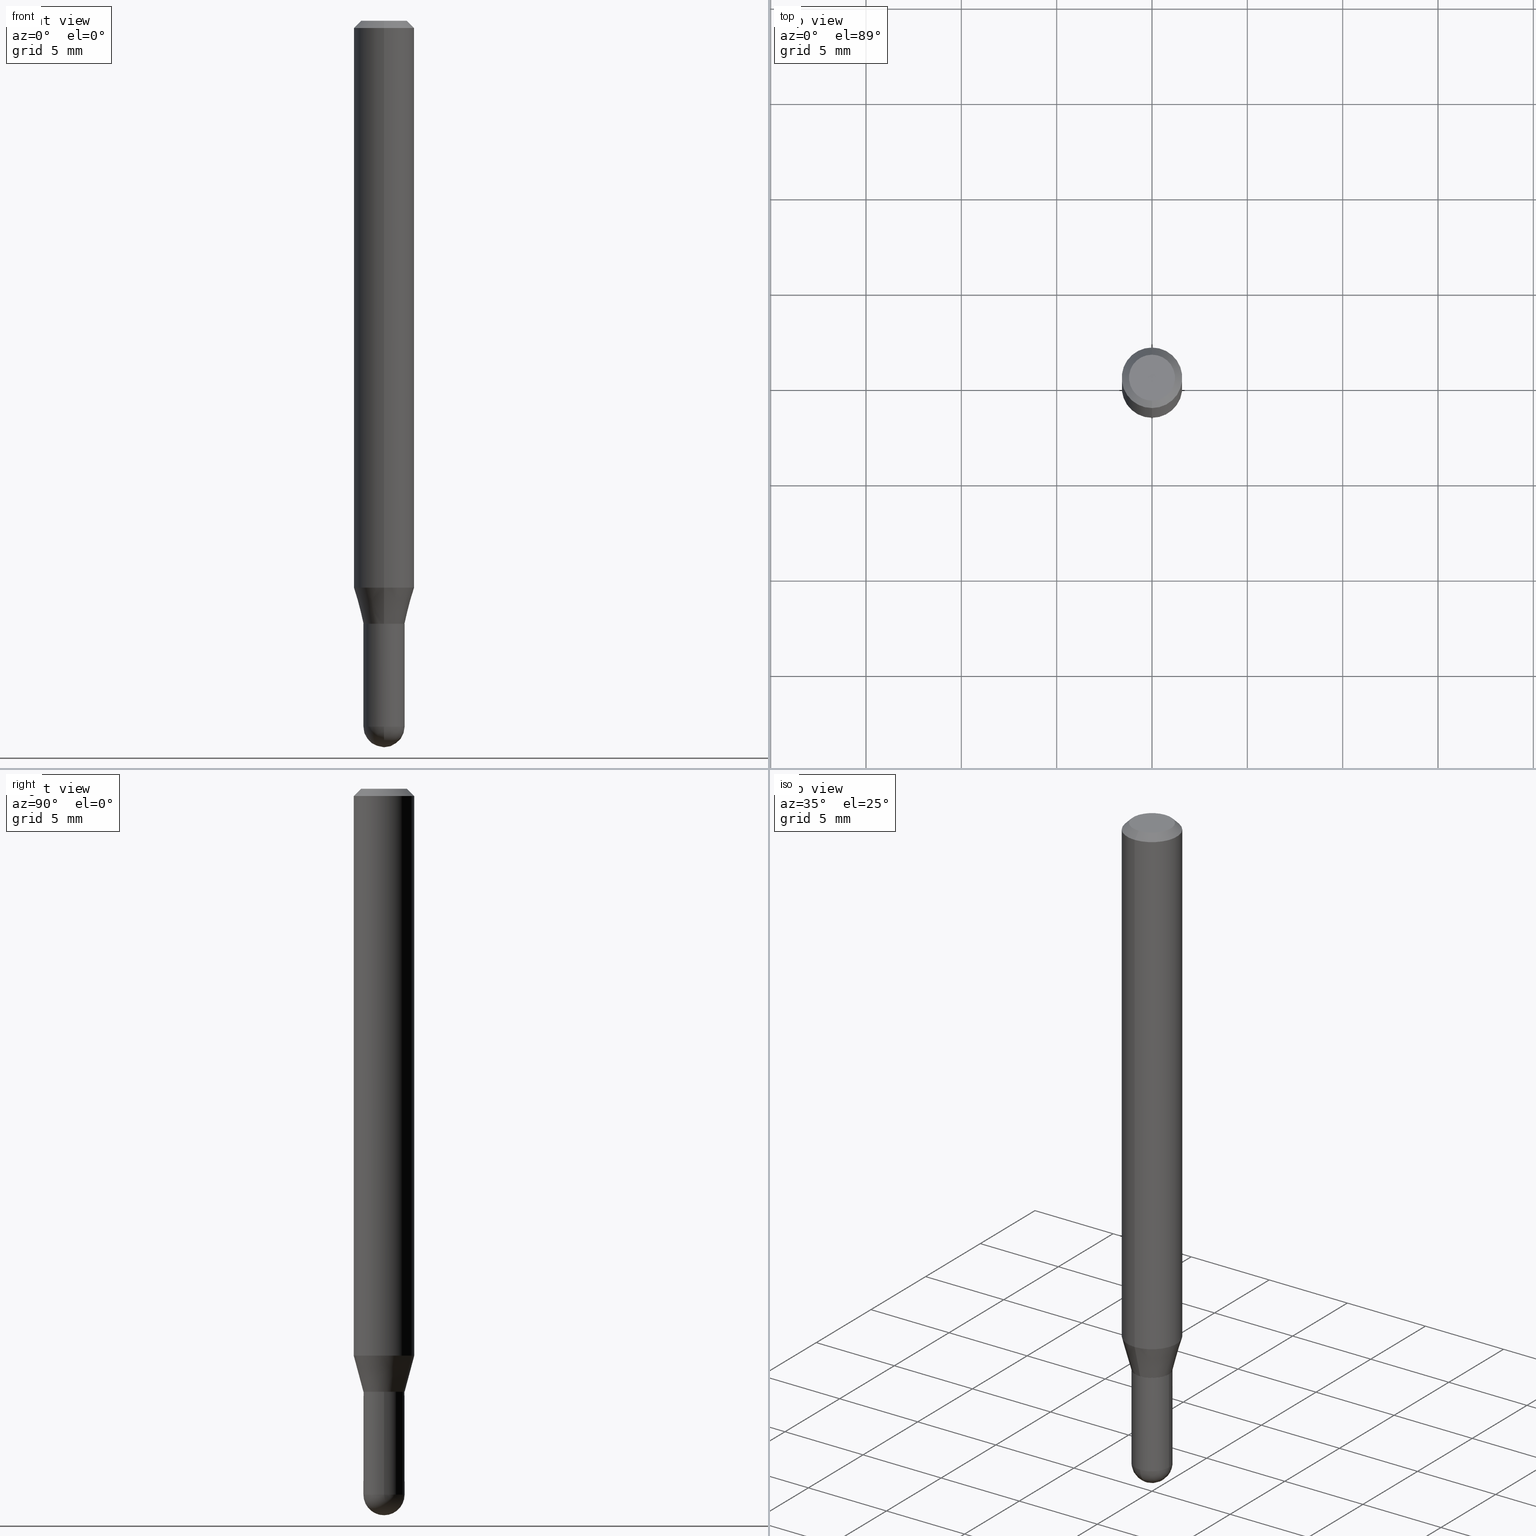
[diagram: canonical four-view strip — front | top / right | iso, engineering-drawing reading convention]
A machine part, canonical four-view strip (front | top / right | iso — engineering-drawing reading convention). The complete STEP part file that produces these views, byte-faithful:
ISO-10303-21;
HEADER;
FILE_DESCRIPTION (( 'STEP AP203' ),
    '1' );
FILE_NAME ('04445.STEP',
    '2024-03-08T19:35:54',
    ( '' ),
    ( '' ),
    'SwSTEP 2.0',
    'SolidWorks 2023',
    '' );
FILE_SCHEMA (( 'CONFIG_CONTROL_DESIGN' ));
ENDSEC;

DATA;
#1 = EDGE_CURVE ( 'NONE', #182, #264, #309, .T. ) ;
#2 = DIRECTION ( 'NONE',  ( 6.982962677686265922E-15, 1.000000000000000000, -3.483106191921935554E-15 ) ) ;
#3 = ORIENTED_EDGE ( 'NONE', *, *, #354, .F. ) ;
#4 = ORIENTED_EDGE ( 'NONE', *, *, #226, .F. ) ;
#5 = CARTESIAN_POINT ( 'NONE',  ( -0.04250000000000000999, 3.019806626980426500E-16, -2.090547413358335560E-30 ) ) ;
#6 = AXIS2_PLACEMENT_3D ( 'NONE', #481, #129, #242 ) ;
#7 = LOCAL_TIME ( 14, 35, 54.00000000000000000, #35 ) ;
#8 = EDGE_CURVE ( 'NONE', #411, #455, #431, .T. ) ;
#9 = DIRECTION ( 'NONE',  ( -6.982962677686266711E-15, -1.000000000000000000, 0.000000000000000000 ) ) ;
#10 = CARTESIAN_POINT ( 'NONE',  ( 3.044647854309381895E-29, -4.346838143677203113E-15, -1.245000000000000551 ) ) ;
#11 = DIRECTION ( 'NONE',  ( -6.982962677686265922E-15, -1.000000000000000000, 6.504399984914913214E-15 ) ) ;
#12 = AXIS2_PLACEMENT_3D ( 'NONE', #462, #417, #223 ) ;
#13 = DIRECTION ( 'NONE',  ( -1.807323732225377471E-15, -0.2588190451025249583, 0.9659258262890670910 ) ) ;
#14 = VERTEX_POINT ( 'NONE', #153 ) ;
#15 = EDGE_CURVE ( 'NONE', #84, #264, #194, .T. ) ;
#16 = CARTESIAN_POINT ( 'NONE',  ( 3.560636328285825248E-29, -5.094038800260261442E-15, -1.457500000000000240 ) ) ;
#17 = APPROVAL_STATUS ( 'not_yet_approved' ) ;
#18 = DIRECTION ( 'NONE',  ( 1.000000000000000000, -6.982962677686265133E-15, 0.000000000000000000 ) ) ;
#19 =( NAMED_UNIT ( * ) SI_UNIT ( $, .STERADIAN. ) SOLID_ANGLE_UNIT ( ) );
#20 = CARTESIAN_POINT ( 'NONE',  ( 3.044647854309380213E-29, -4.346838143677201535E-15, -1.244999999999999885 ) ) ;
#21 = CIRCLE ( 'NONE', #422, 0.04249999999999999611 ) ;
#22 = DIRECTION ( 'NONE',  ( -1.000000000000000000, 6.982962677686265922E-15, -4.876176775795935793E-29 ) ) ;
#23 = EDGE_LOOP ( 'NONE', ( #251, #350 ) ) ;
#24 = DIRECTION ( 'NONE',  ( -2.445500284585847843E-29, 3.491436259981687850E-15, 1.000000000000000000 ) ) ;
#25 = CARTESIAN_POINT ( 'NONE',  ( -2.967759138016676861E-16, -0.04250000000000019734, 1.483860410492224051E-16 ) ) ;
#26 = APPROVAL_DATE_TIME ( #341, #348 ) ;
#27 = FACE_OUTER_BOUND ( 'NONE', #220, .T. ) ;
#28 = CARTESIAN_POINT ( 'NONE',  ( -2.967759138016372164E-16, -0.04250000000000454109, -1.244999999999999662 ) ) ;
#29 = AXIS2_PLACEMENT_3D ( 'NONE', #214, #184, #414 ) ;
#30 = CARTESIAN_POINT ( 'NONE',  ( 3.043425104167088592E-29, -4.345092425547212423E-15, -1.244500000000000384 ) ) ;
#31 = EDGE_LOOP ( 'NONE', ( #55, #61 ) ) ;
#32 = CARTESIAN_POINT ( 'NONE',  ( 3.019806626980743523E-16, 0.04249999999999585359, -1.245000000000000329 ) ) ;
#33 = PRODUCT ( '04445', '04445', '', ( #206 ) ) ;
#34 = DIRECTION ( 'NONE',  ( 7.105427357601001070E-15, 1.000000000000000000, 0.000000000000000000 ) ) ;
#35 = COORDINATED_UNIVERSAL_TIME_OFFSET ( 5, 0, .BEHIND. ) ;
#36 = ADVANCED_FACE ( 'NONE', ( #505 ), #322, .T. ) ;
#37 = DIRECTION ( 'NONE',  ( 1.000000000000000000, -7.105427357601001070E-15, 4.926315508542082329E-29 ) ) ;
#38 = CIRCLE ( 'NONE', #456, 0.04249999999999995448 ) ;
#39 = ORIENTED_EDGE ( 'NONE', *, *, #377, .F. ) ;
#40 = DIRECTION ( 'NONE',  ( -2.445500284585847843E-29, 3.491436259981687850E-15, 1.000000000000000000 ) ) ;
#41 = DATE_TIME_ROLE ( 'creation_date' ) ;
#42 = ORIENTED_EDGE ( 'NONE', *, *, #420, .T. ) ;
#43 = VERTEX_POINT ( 'NONE', #224 ) ;
#44 = DIRECTION ( 'NONE',  ( -6.982962677686265922E-15, -1.000000000000000000, 6.427877632151177410E-15 ) ) ;
#45 = VECTOR ( 'NONE', #83, 39.37007874015748143 ) ;
#46 = CC_DESIGN_APPROVAL ( #278, ( #174 ) ) ;
#47 = FACE_OUTER_BOUND ( 'NONE', #359, .T. ) ;
#48 = ADVANCED_FACE ( 'NONE', ( #66 ), #159, .T. ) ;
#49 = ADVANCED_FACE ( 'NONE', ( #229 ), #233, .T. ) ;
#50 = DIRECTION ( 'NONE',  ( 1.000000000000000000, -6.982962677686265922E-15, 4.883557194083112901E-29 ) ) ;
#51 = ORIENTED_EDGE ( 'NONE', *, *, #136, .F. ) ;
#52 = CARTESIAN_POINT ( 'NONE',  ( 3.316907271900976096E-16, 0.04749999999999999362, -1.985944099982878842E-16 ) ) ;
#53 = ADVANCED_FACE ( 'NONE', ( #311 ), #269, .F. ) ;
#54 = UNCERTAINTY_MEASURE_WITH_UNIT (LENGTH_MEASURE( 1.000000000000000082E-05 ), #472, 'distance_accuracy_value', 'NONE');
#55 = ORIENTED_EDGE ( 'NONE', *, *, #133, .T. ) ;
#56 = APPROVAL_ROLE ( '' ) ;
#57 = ORIENTED_EDGE ( 'NONE', *, *, #408, .T. ) ;
#58 = ORIENTED_EDGE ( 'NONE', *, *, #150, .T. ) ;
#59 = CARTESIAN_POINT ( 'NONE',  ( 3.044647854309380213E-29, -4.346838143677201535E-15, -1.244999999999999885 ) ) ;
#60 = EDGE_LOOP ( 'NONE', ( #389, #234, #464, #51 ) ) ;
#61 = ORIENTED_EDGE ( 'NONE', *, *, #370, .T. ) ;
#62 = CIRCLE ( 'NONE', #328, 0.04199999999999999567 ) ;
#63 = DIRECTION ( 'NONE',  ( -2.445500284585847843E-29, 3.491436259981687850E-15, 1.000000000000000000 ) ) ;
#64 = DIRECTION ( 'NONE',  ( -2.445500284585847563E-29, 3.491436259981687850E-15, 1.000000000000000000 ) ) ;
#65 = DATE_TIME_ROLE ( 'classification_date' ) ;
#66 = FACE_OUTER_BOUND ( 'NONE', #82, .T. ) ;
#67 =( NAMED_UNIT ( * ) PLANE_ANGLE_UNIT ( ) SI_UNIT ( $, .RADIAN. ) );
#68 = DIRECTION ( 'NONE',  ( -6.982962677686265922E-15, -1.000000000000000000, 3.491436259981687850E-15 ) ) ;
#69 = CC_DESIGN_DATE_AND_TIME_ASSIGNMENT ( #429, #65, ( #174 ) ) ;
#70 = VECTOR ( 'NONE', #13, 39.37007874015748854 ) ;
#71 = LOCAL_TIME ( 14, 35, 54.00000000000000000, #302 ) ;
#72 = ORIENTED_EDGE ( 'NONE', *, *, #133, .F. ) ;
#73 = ADVANCED_FACE ( 'NONE', ( #394 ), #388, .F. ) ;
#74 = CARTESIAN_POINT ( 'NONE',  ( -2.932844324627926808E-16, -0.04200000000000434636, -1.245000000000000329 ) ) ;
#75 = AXIS2_PLACEMENT_3D ( 'NONE', #20, #468, #115 ) ;
#76 = DIRECTION ( 'NONE',  ( -2.445500284585847843E-29, 3.491436259981687850E-15, 1.000000000000000000 ) ) ;
#77 = VECTOR ( 'NONE', #40, 39.37007874015748143 ) ;
#78 = PERSON_AND_ORGANIZATION_ROLE ( 'design_owner' ) ;
#79 = PERSON_AND_ORGANIZATION ( #430, #382 ) ;
#80 = ORIENTED_EDGE ( 'NONE', *, *, #132, .T. ) ;
#81 = ORIENTED_EDGE ( 'NONE', *, *, #152, .T. ) ;
#82 = EDGE_LOOP ( 'NONE', ( #93, #151, #181, #371, #149 ) ) ;
#83 = DIRECTION ( 'NONE',  ( -4.851104656540964275E-15, -0.7071067811865500152, -0.7071067811865450192 ) ) ;
#84 = VERTEX_POINT ( 'NONE', #28 ) ;
#85 = CARTESIAN_POINT ( 'NONE',  ( 3.019806626980439319E-16, 0.04250000000000019734, -1.483860410492224051E-16 ) ) ;
#86 = AXIS2_PLACEMENT_3D ( 'NONE', #447, #436, #440 ) ;
#87 = CARTESIAN_POINT ( 'NONE',  ( 4.364351673553919652E-16, 0.06249999999999995143, -0.01500000000000028394 ) ) ;
#88 = VECTOR ( 'NONE', #361, 39.37007874015748143 ) ;
#89 = ADVANCED_FACE ( 'NONE', ( #501 ), #465, .T. ) ;
#90 = EDGE_CURVE ( 'NONE', #411, #84, #305, .T. ) ;
#91 = CARTESIAN_POINT ( 'NONE',  ( 3.564270785014837509E-29, -5.088834051363884851E-15, -1.457500000000000240 ) ) ;
#92 = VERTEX_POINT ( 'NONE', #203 ) ;
#93 = ORIENTED_EDGE ( 'NONE', *, *, #293, .T. ) ;
#94 = CLOSED_SHELL ( 'NONE', ( #487, #391, #324, #427, #478, #183, #89, #113, #316, #53, #36, #73 ) ) ;
#95 = DIRECTION ( 'NONE',  ( 4.937700262164548042E-15, 0.7071067811865451302, -0.7071067811865499042 ) ) ;
#96 = ORIENTED_EDGE ( 'NONE', *, *, #404, .T. ) ;
#97 = CIRCLE ( 'NONE', #178, 0.04250000000000000999 ) ;
#98 = APPROVAL_STATUS ( 'not_yet_approved' ) ;
#99 = VERTEX_POINT ( 'NONE', #351 ) ;
#100 = COORDINATED_UNIVERSAL_TIME_OFFSET ( 5, 0, .BEHIND. ) ;
#101 = CARTESIAN_POINT ( 'NONE',  ( 2.967759138016967261E-16, 0.04249999999999565237, -1.245000000000000551 ) ) ;
#102 = VERTEX_POINT ( 'NONE', #337 ) ;
#103 = CARTESIAN_POINT ( 'NONE',  ( -2.932844324627926808E-16, -0.04200000000000434636, -1.245000000000000329 ) ) ;
#104 = DIRECTION ( 'NONE',  ( -2.445500284585847843E-29, 3.491436259981687850E-15, 1.000000000000000000 ) ) ;
#105 = ORIENTED_EDGE ( 'NONE', *, *, #15, .T. ) ;
#106 = DIRECTION ( 'NONE',  ( -6.982962677686265922E-15, -1.000000000000000000, 6.427877632151214487E-15 ) ) ;
#107 = DATE_AND_TIME ( #385, #71 ) ;
#108 = AXIS2_PLACEMENT_3D ( 'NONE', #304, #146, #428 ) ;
#109 = CIRCLE ( 'NONE', #399, 0.06250000000000000000 ) ;
#110 = CARTESIAN_POINT ( 'NONE',  ( 3.730349362740827577E-16, 0.04249999999999585359, -1.245000000000000329 ) ) ;
#111 = VERTEX_POINT ( 'NONE', #470 ) ;
#112 = PERSON_AND_ORGANIZATION ( #430, #382 ) ;
#113 = ADVANCED_FACE ( 'NONE', ( #187 ), #240, .T. ) ;
#114 = PLANE ( 'NONE',  #412 ) ;
#115 = DIRECTION ( 'NONE',  ( -6.982962677686265922E-15, -1.000000000000000000, 6.427877632151177410E-15 ) ) ;
#116 = APPROVAL_PERSON_ORGANIZATION ( #256, #335, #180 ) ;
#117 = DATE_AND_TIME ( #286, #7 ) ;
#118 = CIRCLE ( 'NONE', #336, 0.06250000000000000000 ) ;
#119 = LINE ( 'NONE', #250, #88 ) ;
#120 = DIRECTION ( 'NONE',  ( -6.982962677686266711E-15, -1.000000000000000000, 3.491436259981688244E-15 ) ) ;
#121 = COORDINATED_UNIVERSAL_TIME_OFFSET ( 5, 0, .BEHIND. ) ;
#122 = ORIENTED_EDGE ( 'NONE', *, *, #246, .T. ) ;
#123 = DIRECTION ( 'NONE',  ( 1.000000000000000000, -6.982962677686265133E-15, 0.000000000000000000 ) ) ;
#124 = CALENDAR_DATE ( 2024, 8, 3 ) ;
#125 = MANIFOLD_SOLID_BREP ( 'Body-Move/Copy2[1]', #318 ) ;
#126 = FACE_OUTER_BOUND ( 'NONE', #360, .T. ) ;
#127 = CC_DESIGN_APPROVAL ( #335, ( #445 ) ) ;
#128 = ORIENTED_EDGE ( 'NONE', *, *, #132, .F. ) ;
#129 = DIRECTION ( 'NONE',  ( -2.445500284585847843E-29, 3.491436259981687850E-15, 1.000000000000000000 ) ) ;
#130 = COORDINATED_UNIVERSAL_TIME_OFFSET ( 5, 0, .BEHIND. ) ;
#131 = DIRECTION ( 'NONE',  ( 1.000000000000000000, -6.982962677686273810E-15, 0.000000000000000000 ) ) ;
#132 = EDGE_CURVE ( 'NONE', #258, #92, #118, .T. ) ;
#133 = EDGE_CURVE ( 'NONE', #506, #384, #381, .T. ) ;
#134 = DIRECTION ( 'NONE',  ( -2.445500284585847843E-29, 3.491436259981687850E-15, 1.000000000000000000 ) ) ;
#135 = AXIS2_PLACEMENT_3D ( 'NONE', #437, #76, #358 ) ;
#136 = EDGE_CURVE ( 'NONE', #455, #500, #212, .T. ) ;
#137 = DIRECTION ( 'NONE',  ( 6.982962677686265922E-15, 1.000000000000000000, -3.483106191921935554E-15 ) ) ;
#138 = CARTESIAN_POINT ( 'NONE',  ( 3.019806626980780501E-16, 0.04249999999999488215, -1.457500000000000462 ) ) ;
#139 = ORIENTED_EDGE ( 'NONE', *, *, #387, .T. ) ;
#140 =( LENGTH_UNIT ( ) NAMED_UNIT ( * ) SI_UNIT ( $, .METRE. ) );
#141 = DIMENSIONAL_EXPONENTS ( 1.000000000000000000, 0.000000000000000000, 0.000000000000000000, 0.000000000000000000, 0.000000000000000000, 0.000000000000000000, 0.000000000000000000 ) ;
#142 = ORIENTED_EDGE ( 'NONE', *, *, #313, .T. ) ;
#143 = CIRCLE ( 'NONE', #29, 0.04749999999999999362 ) ;
#144 = FACE_OUTER_BOUND ( 'NONE', #197, .T. ) ;
#145 = ORIENTED_EDGE ( 'NONE', *, *, #189, .T. ) ;
#146 = DIRECTION ( 'NONE',  ( -2.445500284585847843E-29, 3.491436259981687850E-15, 1.000000000000000000 ) ) ;
#147 = ORIENTED_EDGE ( 'NONE', *, *, #469, .F. ) ;
#148 = DIRECTION ( 'NONE',  ( -2.445500284585847843E-29, 3.491436259981687850E-15, 1.000000000000000000 ) ) ;
#149 = ORIENTED_EDGE ( 'NONE', *, *, #362, .T. ) ;
#150 = EDGE_CURVE ( 'NONE', #99, #332, #38, .T. ) ;
#151 = ORIENTED_EDGE ( 'NONE', *, *, #213, .T. ) ;
#152 = EDGE_CURVE ( 'NONE', #102, #264, #452, .T. ) ;
#153 = CARTESIAN_POINT ( 'NONE',  ( 0.04250000000000000999, -5.014640072913468189E-15, -1.457500000000000240 ) ) ;
#154 = AXIS2_PLACEMENT_3D ( 'NONE', #30, #202, #186 ) ;
#155 = AXIS2_PLACEMENT_3D ( 'NONE', #52, #367, #451 ) ;
#156 = LINE ( 'NONE', #193, #463 ) ;
#157 = ORIENTED_EDGE ( 'NONE', *, *, #152, .F. ) ;
#158 = EDGE_LOOP ( 'NONE', ( #275, #215, #42, #191 ) ) ;
#159 = CYLINDRICAL_SURFACE ( 'NONE', #344, 0.04250000000000000999 ) ;
#160 = CC_DESIGN_DATE_AND_TIME_ASSIGNMENT ( #117, #41, ( #445 ) ) ;
#161 = CARTESIAN_POINT ( 'NONE',  ( 4.440892098500625669E-16, 0.06250000000000000000, -2.182147662488554906E-16 ) ) ;
#162 = AXIS2_PLACEMENT_3D ( 'NONE', #300, #148, #459 ) ;
#163 = AXIS2_PLACEMENT_3D ( 'NONE', #353, #279, #330 ) ;
#164 = APPROVAL_PERSON_ORGANIZATION ( #112, #278, #56 ) ;
#165 = DIRECTION ( 'NONE',  ( -2.445500284585847843E-29, 3.491436259981687850E-15, 1.000000000000000000 ) ) ;
#166 = DIRECTION ( 'NONE',  ( -2.445500284585847843E-29, 3.491436259981687850E-15, 1.000000000000000000 ) ) ;
#167 = ORIENTED_EDGE ( 'NONE', *, *, #313, .F. ) ;
#168 = CARTESIAN_POINT ( 'NONE',  ( 3.044647854309380213E-29, -4.346838143677201535E-15, -1.244999999999999885 ) ) ;
#169 = VECTOR ( 'NONE', #271, 39.37007874015748143 ) ;
#170 = EDGE_LOOP ( 'NONE', ( #426, #72, #218, #57 ) ) ;
#171 = CC_DESIGN_PERSON_AND_ORGANIZATION_ASSIGNMENT ( #265, #502, ( #405 ) ) ;
#172 = CONICAL_SURFACE ( 'NONE', #433, 0.04250000000000019734, 0.2617993877991572904 ) ;
#173 = CARTESIAN_POINT ( 'NONE',  ( 0.000000000000000000, 0.000000000000000000, 0.000000000000000000 ) ) ;
#174 = SECURITY_CLASSIFICATION ( '', '', #272 ) ;
#175 = FACE_OUTER_BOUND ( 'NONE', #31, .T. ) ;
#176 = DIRECTION ( 'NONE',  ( -6.982962677686265922E-15, -1.000000000000000000, 6.427877632151214487E-15 ) ) ;
#177 = CARTESIAN_POINT ( 'NONE',  ( 3.560636328285825248E-29, -5.094038800260261442E-15, -1.457500000000000240 ) ) ;
#178 = AXIS2_PLACEMENT_3D ( 'NONE', #369, #288, #406 ) ;
#179 = EDGE_LOOP ( 'NONE', ( #303, #415, #81, #393 ) ) ;
#180 = APPROVAL_ROLE ( '' ) ;
#181 = ORIENTED_EDGE ( 'NONE', *, *, #189, .F. ) ;
#182 = VERTEX_POINT ( 'NONE', #74 ) ;
#183 = ADVANCED_FACE ( 'NONE', ( #512 ), #172, .T. ) ;
#184 = DIRECTION ( 'NONE',  ( -2.445500284585847843E-29, 3.491436259981687850E-15, 1.000000000000000000 ) ) ;
#185 = EDGE_LOOP ( 'NONE', ( #494, #238, #274, #383 ) ) ;
#186 = DIRECTION ( 'NONE',  ( -6.982962677686265922E-15, -1.000000000000000000, 6.427877632151177410E-15 ) ) ;
#187 = FACE_OUTER_BOUND ( 'NONE', #170, .T. ) ;
#188 = CIRCLE ( 'NONE', #6, 0.04199999999999999567 ) ;
#189 = EDGE_CURVE ( 'NONE', #111, #401, #21, .T. ) ;
#190 = FACE_OUTER_BOUND ( 'NONE', #179, .T. ) ;
#191 = ORIENTED_EDGE ( 'NONE', *, *, #408, .F. ) ;
#192 = ORIENTED_EDGE ( 'NONE', *, *, #1, .F. ) ;
#193 = CARTESIAN_POINT ( 'NONE',  ( -4.364351673553916201E-16, -0.06250000000000000000, 2.182147662488554906E-16 ) ) ;
#194 = LINE ( 'NONE', #25, #320 ) ;
#195 = APPROVAL_DATE_TIME ( #107, #278 ) ;
#196 = CARTESIAN_POINT ( 'NONE',  ( 4.440892098500914096E-16, 0.06249999999999594075, -1.170358983848625689 ) ) ;
#197 = EDGE_LOOP ( 'NONE', ( #444, #491, #484, #338 ) ) ;
#198 = DIRECTION ( 'NONE',  ( -2.445500284585847843E-29, 3.491436259981687850E-15, 1.000000000000000000 ) ) ;
#199 = PERSON_AND_ORGANIZATION_ROLE ( 'creator' ) ;
#200 = AXIS2_PLACEMENT_3D ( 'NONE', #496, #315, #2 ) ;
#201 = CC_DESIGN_APPROVAL ( #348, ( #405 ) ) ;
#202 = DIRECTION ( 'NONE',  ( -2.445500284585847843E-29, 3.491436259981687850E-15, 1.000000000000000000 ) ) ;
#203 = CARTESIAN_POINT ( 'NONE',  ( 4.440892098500914096E-16, 0.06249999999999995143, -0.01500000000000028394 ) ) ;
#204 = CARTESIAN_POINT ( 'NONE',  ( -4.364351673553912750E-16, -0.06250000000000005551, -0.01499999999999984852 ) ) ;
#205 = CARTESIAN_POINT ( 'NONE',  ( -4.287811248607203282E-16, -0.06250000000000005551, -0.01499999999999984852 ) ) ;
#206 = MECHANICAL_CONTEXT ( 'NONE', #289, 'mechanical' ) ;
#207 = CONICAL_SURFACE ( 'NONE', #489, 0.04199999999999999567, 0.7853981633974739252 ) ;
#208 = DIRECTION ( 'NONE',  ( -6.982962677686265922E-15, -1.000000000000000000, 4.370956789862821150E-15 ) ) ;
#209 = CARTESIAN_POINT ( 'NONE',  ( -2.967759138016363289E-16, -0.04250000000000441619, -1.244500000000000162 ) ) ;
#210 = ORIENTED_EDGE ( 'NONE', *, *, #362, .F. ) ;
#211 = PERSON_AND_ORGANIZATION ( #430, #382 ) ;
#212 = CIRCLE ( 'NONE', #482, 0.06250000000000000000 ) ;
#213 = EDGE_CURVE ( 'NONE', #43, #401, #285, .T. ) ;
#214 = CARTESIAN_POINT ( 'NONE',  ( 1.601860774330794384E-45, -2.286973682314673928E-31, -6.550237529831545081E-17 ) ) ;
#215 = ORIENTED_EDGE ( 'NONE', *, *, #136, .T. ) ;
#216 = CARTESIAN_POINT ( 'NONE',  ( -2.967759138016372164E-16, -0.04250000000000454109, -1.244999999999999662 ) ) ;
#217 = AXIS2_PLACEMENT_3D ( 'NONE', #16, #373, #9 ) ;
#218 = ORIENTED_EDGE ( 'NONE', *, *, #354, .T. ) ;
#219 = CARTESIAN_POINT ( 'NONE',  ( 3.668250426878787950E-31, -5.237154389972554751E-17, -0.01500000000000006710 ) ) ;
#220 = EDGE_LOOP ( 'NONE', ( #458, #122, #128, #237 ) ) ;
#221 = CC_DESIGN_PERSON_AND_ORGANIZATION_ASSIGNMENT ( #211, #78, ( #33 ) ) ;
#222 = ORIENTED_EDGE ( 'NONE', *, *, #352, .F. ) ;
#223 = DIRECTION ( 'NONE',  ( -6.982962677686265922E-15, -1.000000000000000000, 3.491436259981687850E-15 ) ) ;
#224 = CARTESIAN_POINT ( 'NONE',  ( -0.04250000000000000999, -4.415883496413759874E-15, -1.457500000000000240 ) ) ;
#225 = VERTEX_POINT ( 'NONE', #319 ) ;
#226 = EDGE_CURVE ( 'NONE', #225, #102, #282, .T. ) ;
#227 = DIRECTION ( 'NONE',  ( -2.445500284585847843E-29, 3.491436259981687850E-15, 1.000000000000000000 ) ) ;
#228 = LOCAL_TIME ( 14, 35, 54.00000000000000000, #121 ) ;
#229 = FACE_OUTER_BOUND ( 'NONE', #185, .T. ) ;
#230 = VECTOR ( 'NONE', #493, 39.37007874015748143 ) ;
#231 = CYLINDRICAL_SURFACE ( 'NONE', #474, 0.04250000000000019734 ) ;
#232 = EDGE_LOOP ( 'NONE', ( #39, #249, #105, #276 ) ) ;
#233 = SPHERICAL_SURFACE ( 'NONE', #398, 0.04249999999999995448 ) ;
#234 = ORIENTED_EDGE ( 'NONE', *, *, #90, .T. ) ;
#235 = CARTESIAN_POINT ( 'NONE',  ( 0.000000000000000000, 0.000000000000000000, 0.000000000000000000 ) ) ;
#236 = DIRECTION ( 'NONE',  ( -6.982962677686265922E-15, -1.000000000000000000, 6.427877632151177410E-15 ) ) ;
#237 = ORIENTED_EDGE ( 'NONE', *, *, #420, .F. ) ;
#238 = ORIENTED_EDGE ( 'NONE', *, *, #352, .T. ) ;
#239 = CC_DESIGN_PERSON_AND_ORGANIZATION_ASSIGNMENT ( #376, #307, ( #174 ) ) ;
#240 = CONICAL_SURFACE ( 'NONE', #200, 0.06250000000000000000, 0.7853981633974483900 ) ;
#241 = APPROVAL_STATUS ( 'not_yet_approved' ) ;
#242 = DIRECTION ( 'NONE',  ( -6.982962677686265922E-15, -1.000000000000000000, 6.504399984914913214E-15 ) ) ;
#243 = CARTESIAN_POINT ( 'NONE',  ( 1.601860774330794384E-45, -2.286973682314673928E-31, -6.550237529831545081E-17 ) ) ;
#244 = AXIS2_PLACEMENT_3D ( 'NONE', #235, #24, #342 ) ;
#245 = CIRCLE ( 'NONE', #372, 0.04250000000000019734 ) ;
#246 = EDGE_CURVE ( 'NONE', #455, #92, #400, .T. ) ;
#247 = CARTESIAN_POINT ( 'NONE',  ( 2.862113228069417180E-29, -4.086233793404413887E-15, -1.170358983848625467 ) ) ;
#248 = PERSON_AND_ORGANIZATION_ROLE ( 'creator' ) ;
#249 = ORIENTED_EDGE ( 'NONE', *, *, #450, .F. ) ;
#250 = CARTESIAN_POINT ( 'NONE',  ( 0.04250000000000000999, -2.967759138016664042E-16, 2.072375129713273202E-30 ) ) ;
#251 = ORIENTED_EDGE ( 'NONE', *, *, #404, .F. ) ;
#252 = PRODUCT_RELATED_PRODUCT_CATEGORY ( 'detail', '', ( #33 ) ) ;
#253 = AXIS2_PLACEMENT_3D ( 'NONE', #91, #290, #410 ) ;
#254 = CARTESIAN_POINT ( 'NONE',  ( -3.773273898774340269E-16, -0.04749999999999999362, 1.003408470508147142E-16 ) ) ;
#255 = CC_DESIGN_SECURITY_CLASSIFICATION ( #174, ( #405 ) ) ;
#256 = PERSON_AND_ORGANIZATION ( #430, #382 ) ;
#257 = ORIENTED_EDGE ( 'NONE', *, *, #281, .T. ) ;
#258 = VERTEX_POINT ( 'NONE', #204 ) ;
#259 = DIRECTION ( 'NONE',  ( -2.445468806185136597E-29, 3.491481338843145583E-15, 1.000000000000000000 ) ) ;
#260 = CALENDAR_DATE ( 2024, 8, 3 ) ;
#261 = VECTOR ( 'NONE', #435, 39.37007874015748143 ) ;
#262 = CC_DESIGN_PERSON_AND_ORGANIZATION_ASSIGNMENT ( #416, #199, ( #405 ) ) ;
#263 = EDGE_LOOP ( 'NONE', ( #222, #58, #210, #167 ) ) ;
#264 = VERTEX_POINT ( 'NONE', #209 ) ;
#265 = PERSON_AND_ORGANIZATION ( #430, #382 ) ;
#266 = CYLINDRICAL_SURFACE ( 'NONE', #12, 0.06250000000000000000 ) ;
#267 = CARTESIAN_POINT ( 'NONE',  ( 0.000000000000000000, 0.000000000000000000, 0.000000000000000000 ) ) ;
#268 = ADVANCED_FACE ( 'NONE', ( #126 ), #312, .T. ) ;
#269 = PLANE ( 'NONE',  #334 ) ;
#270 = CIRCLE ( 'NONE', #217, 0.04249999999999995448 ) ;
#271 = DIRECTION ( 'NONE',  ( 1.839019923739648436E-15, 0.2588190451025317307, 0.9659258262890653146 ) ) ;
#272 = SECURITY_CLASSIFICATION_LEVEL ( 'unclassified' ) ;
#273 = DIRECTION ( 'NONE',  ( 2.438088387897960049E-29, -3.491481338843145188E-15, -1.000000000000000000 ) ) ;
#274 = ORIENTED_EDGE ( 'NONE', *, *, #387, .F. ) ;
#275 = ORIENTED_EDGE ( 'NONE', *, *, #246, .F. ) ;
#276 = ORIENTED_EDGE ( 'NONE', *, *, #469, .T. ) ;
#277 = ORIENTED_EDGE ( 'NONE', *, *, #1, .T. ) ;
#278 = APPROVAL ( #98, 'UNSPECIFIED' ) ;
#279 = DIRECTION ( 'NONE',  ( -2.445468806185136597E-29, 3.491481338843145583E-15, 1.000000000000000000 ) ) ;
#280 = EDGE_CURVE ( 'NONE', #384, #258, #507, .T. ) ;
#281 = EDGE_CURVE ( 'NONE', #14, #111, #119, .T. ) ;
#282 = LINE ( 'NONE', #364, #441 ) ;
#283 = DATE_AND_TIME ( #124, #228 ) ;
#284 = CIRCLE ( 'NONE', #346, 0.04249999999999999611 ) ;
#285 = LINE ( 'NONE', #5, #261 ) ;
#286 = CALENDAR_DATE ( 2024, 8, 3 ) ;
#287 = ADVANCED_BREP_SHAPE_REPRESENTATION ( '04445', ( #125, #477, #86 ), #423 ) ;
#288 = DIRECTION ( 'NONE',  ( -2.445468806185136597E-29, 3.491481338843145583E-15, 1.000000000000000000 ) ) ;
#289 = APPLICATION_CONTEXT ( 'configuration controlled 3d designs of mechanical parts and assemblies' ) ;
#290 = DIRECTION ( 'NONE',  ( -2.445468806185136597E-29, 3.491481338843145583E-15, 1.000000000000000000 ) ) ;
#291 = EDGE_CURVE ( 'NONE', #225, #182, #188, .T. ) ;
#292 = CARTESIAN_POINT ( 'NONE',  ( 3.044647854309381895E-29, -4.346838143677203113E-15, -1.245000000000000551 ) ) ;
#293 = EDGE_CURVE ( 'NONE', #332, #43, #473, .T. ) ;
#294 = CIRCLE ( 'NONE', #253, 0.04250000000000000999 ) ;
#295 = LOCAL_TIME ( 14, 35, 54.00000000000000000, #130 ) ;
#296 = EDGE_LOOP ( 'NONE', ( #329, #497, #80, #3 ) ) ;
#297 = DIRECTION ( 'NONE',  ( -6.982962677686265922E-15, -1.000000000000000000, 6.427877632151177410E-15 ) ) ;
#298 = DIRECTION ( 'NONE',  ( -2.445468806185136597E-29, 3.491481338843145583E-15, 1.000000000000000000 ) ) ;
#299 = CARTESIAN_POINT ( 'NONE',  ( -4.364351673553628267E-16, -0.06250000000000405231, -1.170358983848625245 ) ) ;
#300 = CARTESIAN_POINT ( 'NONE',  ( 2.862113228069417180E-29, -4.086233793404413887E-15, -1.170358983848625467 ) ) ;
#301 = DIRECTION ( 'NONE',  ( -2.445500284585847843E-29, 3.491436259981687850E-15, 1.000000000000000000 ) ) ;
#302 = COORDINATED_UNIVERSAL_TIME_OFFSET ( 5, 0, .BEHIND. ) ;
#303 = ORIENTED_EDGE ( 'NONE', *, *, #90, .F. ) ;
#304 = CARTESIAN_POINT ( 'NONE',  ( 3.044647854309381895E-29, -4.346838143677203113E-15, -1.245000000000000551 ) ) ;
#305 = CIRCLE ( 'NONE', #75, 0.04250000000000019734 ) ;
#306 = CONICAL_SURFACE ( 'NONE', #511, 0.06250000000000000000, 0.7853981633974483900 ) ;
#307 = PERSON_AND_ORGANIZATION_ROLE ( 'classification_officer' ) ;
#308 = DIRECTION ( 'NONE',  ( -6.982962677686265922E-15, -1.000000000000000000, 6.504399984914913214E-15 ) ) ;
#309 = LINE ( 'NONE', #103, #392 ) ;
#310 = CC_DESIGN_PERSON_AND_ORGANIZATION_ASSIGNMENT ( #79, #248, ( #445 ) ) ;
#311 = FACE_OUTER_BOUND ( 'NONE', #23, .T. ) ;
#312 = CYLINDRICAL_SURFACE ( 'NONE', #403, 0.04250000000000000999 ) ;
#313 = EDGE_CURVE ( 'NONE', #498, #14, #294, .T. ) ;
#314 = AXIS2_PLACEMENT_3D ( 'NONE', #177, #50, #176 ) ;
#315 = DIRECTION ( 'NONE',  ( 2.445500284585847843E-29, -3.491436259981687850E-15, -1.000000000000000000 ) ) ;
#316 = ADVANCED_FACE ( 'NONE', ( #175 ), #409, .F. ) ;
#317 = CARTESIAN_POINT ( 'NONE',  ( 3.044608663700495534E-29, -4.346894266859716647E-15, -1.245000000000000329 ) ) ;
#318 = CLOSED_SHELL ( 'NONE', ( #48, #366, #480, #49, #268 ) ) ;
#319 = CARTESIAN_POINT ( 'NONE',  ( 3.002043058586734593E-16, 0.04199999999999565192, -1.245000000000000773 ) ) ;
#320 = VECTOR ( 'NONE', #301, 39.37007874015748143 ) ;
#321 = APPLICATION_PROTOCOL_DEFINITION ( 'international standard', 'config_control_design', 1994, #438 ) ;
#322 = CONICAL_SURFACE ( 'NONE', #108, 0.04199999999999999567, 0.7853981633974739252 ) ;
#323 = AXIS2_PLACEMENT_3D ( 'NONE', #486, #259, #131 ) ;
#324 = ADVANCED_FACE ( 'NONE', ( #453 ), #306, .T. ) ;
#325 = DIRECTION ( 'NONE',  ( 2.445500284585847843E-29, -3.491436259981687850E-15, -1.000000000000000000 ) ) ;
#326 = SPHERICAL_SURFACE ( 'NONE', #314, 0.04249999999999995448 ) ;
#327 = EDGE_CURVE ( 'NONE', #84, #500, #374, .T. ) ;
#328 = AXIS2_PLACEMENT_3D ( 'NONE', #292, #104, #308 ) ;
#329 = ORIENTED_EDGE ( 'NONE', *, *, #370, .F. ) ;
#330 = DIRECTION ( 'NONE',  ( 1.000000000000000000, -6.982962677686273810E-15, 0.000000000000000000 ) ) ;
#331 = LINE ( 'NONE', #85, #230 ) ;
#332 = VERTEX_POINT ( 'NONE', #138 ) ;
#333 = SHAPE_DEFINITION_REPRESENTATION ( #471, #287 ) ;
#334 = AXIS2_PLACEMENT_3D ( 'NONE', #425, #64, #68 ) ;
#335 = APPROVAL ( #17, 'UNSPECIFIED' ) ;
#336 = AXIS2_PLACEMENT_3D ( 'NONE', #475, #510, #355 ) ;
#337 = CARTESIAN_POINT ( 'NONE',  ( 3.019806626980752891E-16, 0.04249999999999597849, -1.244500000000000606 ) ) ;
#338 = ORIENTED_EDGE ( 'NONE', *, *, #327, .F. ) ;
#339 = CARTESIAN_POINT ( 'NONE',  ( 0.000000000000000000, 0.000000000000000000, 0.000000000000000000 ) ) ;
#340 = DIRECTION ( 'NONE',  ( -4.937700262164674260E-15, -0.7071067811865632269, 0.7071067811865319186 ) ) ;
#341 = DATE_AND_TIME ( #260, #295 ) ;
#342 = DIRECTION ( 'NONE',  ( -6.982962677686265922E-15, -1.000000000000000000, 3.491436259981687456E-15 ) ) ;
#343 = DIRECTION ( 'NONE',  ( -6.982962677686265922E-15, -1.000000000000000000, 3.483106191921935554E-15 ) ) ;
#344 = AXIS2_PLACEMENT_3D ( 'NONE', #267, #298, #419 ) ;
#345 = DIRECTION ( 'NONE',  ( -6.982962677686265922E-15, -1.000000000000000000, 3.491436259981687850E-15 ) ) ;
#346 = AXIS2_PLACEMENT_3D ( 'NONE', #504, #467, #18 ) ;
#347 = CIRCLE ( 'NONE', #162, 0.06250000000000000000 ) ;
#348 = APPROVAL ( #241, 'UNSPECIFIED' ) ;
#349 = DIRECTION ( 'NONE',  ( -2.445500284585847843E-29, 3.491436259981687850E-15, 1.000000000000000000 ) ) ;
#350 = ORIENTED_EDGE ( 'NONE', *, *, #291, .F. ) ;
#351 = CARTESIAN_POINT ( 'NONE',  ( 3.662751524184187344E-29, -5.245029131609283457E-15, -1.500000000000000222 ) ) ;
#352 = EDGE_CURVE ( 'NONE', #99, #498, #270, .T. ) ;
#353 = CARTESIAN_POINT ( 'NONE',  ( 3.564270785014837509E-29, -5.088834051363884851E-15, -1.457500000000000240 ) ) ;
#354 = EDGE_CURVE ( 'NONE', #506, #92, #449, .T. ) ;
#355 = DIRECTION ( 'NONE',  ( -6.982962677686265922E-15, -1.000000000000000000, 3.483106191921935554E-15 ) ) ;
#356 = AXIS2_PLACEMENT_3D ( 'NONE', #243, #402, #120 ) ;
#357 = CARTESIAN_POINT ( 'NONE',  ( -2.967759138016305604E-16, -0.04250000000000507538, -1.457500000000000018 ) ) ;
#358 = DIRECTION ( 'NONE',  ( -6.982962677686265922E-15, -1.000000000000000000, 6.427877632151177410E-15 ) ) ;
#359 = EDGE_LOOP ( 'NONE', ( #96, #424, #147, #192 ) ) ;
#360 = EDGE_LOOP ( 'NONE', ( #454, #139, #142, #257, #432 ) ) ;
#361 = DIRECTION ( 'NONE',  ( -2.445468806185136877E-29, 3.491481338843145188E-15, 1.000000000000000000 ) ) ;
#362 = EDGE_CURVE ( 'NONE', #14, #332, #503, .T. ) ;
#363 = EDGE_LOOP ( 'NONE', ( #145, #375 ) ) ;
#364 = CARTESIAN_POINT ( 'NONE',  ( 2.984279490192724677E-16, 0.04199999999999565192, -1.245000000000000773 ) ) ;
#365 = VECTOR ( 'NONE', #95, 39.37007874015748143 ) ;
#366 = ADVANCED_FACE ( 'NONE', ( #488 ), #326, .T. ) ;
#367 = DIRECTION ( 'NONE',  ( 2.445500284585847563E-29, -3.491436259981687850E-15, -1.000000000000000000 ) ) ;
#368 = DESIGN_CONTEXT ( 'detailed design', #438, 'design' ) ;
#369 = CARTESIAN_POINT ( 'NONE',  ( 3.564270785014837509E-29, -5.088834051363884851E-15, -1.457500000000000240 ) ) ;
#370 = EDGE_CURVE ( 'NONE', #384, #506, #143, .T. ) ;
#371 = ORIENTED_EDGE ( 'NONE', *, *, #281, .F. ) ;
#372 = AXIS2_PLACEMENT_3D ( 'NONE', #380, #63, #236 ) ;
#373 = DIRECTION ( 'NONE',  ( -1.000000000000000000, 6.982962677686265922E-15, -4.883557194083112340E-29 ) ) ;
#374 = LINE ( 'NONE', #216, #70 ) ;
#375 = ORIENTED_EDGE ( 'NONE', *, *, #476, .T. ) ;
#376 = PERSON_AND_ORGANIZATION ( #430, #382 ) ;
#377 = EDGE_CURVE ( 'NONE', #411, #102, #331, .T. ) ;
#378 = CARTESIAN_POINT ( 'NONE',  ( 3.840629472727447874E-16, 0.04749999999999999362, -2.313455976474456035E-16 ) ) ;
#379 = DIRECTION ( 'NONE',  ( 1.000000000000000000, -6.982962677686265922E-15, 4.883557194083112901E-29 ) ) ;
#380 = CARTESIAN_POINT ( 'NONE',  ( 3.044647854309380213E-29, -4.346838143677201535E-15, -1.244999999999999885 ) ) ;
#381 = CIRCLE ( 'NONE', #356, 0.04749999999999999362 ) ;
#382 = ORGANIZATION ( 'UNSPECIFIED', 'UNSPECIFIED', '' ) ;
#383 = ORIENTED_EDGE ( 'NONE', *, *, #293, .F. ) ;
#384 = VERTEX_POINT ( 'NONE', #254 ) ;
#385 = CALENDAR_DATE ( 2024, 8, 3 ) ;
#386 = DIRECTION ( 'NONE',  ( -6.982962677686265922E-15, -1.000000000000000000, 3.491436259981687456E-15 ) ) ;
#387 = EDGE_CURVE ( 'NONE', #43, #498, #97, .T. ) ;
#388 = CYLINDRICAL_SURFACE ( 'NONE', #244, 0.04250000000000019734 ) ;
#389 = ORIENTED_EDGE ( 'NONE', *, *, #8, .F. ) ;
#390 = CARTESIAN_POINT ( 'NONE',  ( 0.000000000000000000, 0.000000000000000000, 0.000000000000000000 ) ) ;
#391 = ADVANCED_FACE ( 'NONE', ( #47 ), #207, .T. ) ;
#392 = VECTOR ( 'NONE', #340, 39.37007874015748143 ) ;
#393 = ORIENTED_EDGE ( 'NONE', *, *, #15, .F. ) ;
#394 = FACE_OUTER_BOUND ( 'NONE', #232, .T. ) ;
#395 = CONICAL_SURFACE ( 'NONE', #434, 0.04250000000000019734, 0.2617993877991572904 ) ;
#396 = APPROVAL_ROLE ( '' ) ;
#397 = DIRECTION ( 'NONE',  ( -2.445468806185136597E-29, 3.491481338843145583E-15, 1.000000000000000000 ) ) ;
#398 = AXIS2_PLACEMENT_3D ( 'NONE', #460, #379, #106 ) ;
#399 = AXIS2_PLACEMENT_3D ( 'NONE', #418, #227, #343 ) ;
#400 = LINE ( 'NONE', #161, #77 ) ;
#401 = VERTEX_POINT ( 'NONE', #490 ) ;
#402 = DIRECTION ( 'NONE',  ( -2.445500284585847843E-29, 3.491436259981687850E-15, 1.000000000000000000 ) ) ;
#403 = AXIS2_PLACEMENT_3D ( 'NONE', #173, #397, #446 ) ;
#404 = EDGE_CURVE ( 'NONE', #182, #225, #62, .T. ) ;
#405 = PRODUCT_DEFINITION_FORMATION_WITH_SPECIFIED_SOURCE ( 'ANY', '', #33, .NOT_KNOWN. ) ;
#406 = DIRECTION ( 'NONE',  ( 1.000000000000000000, -6.982962677686273810E-15, 0.000000000000000000 ) ) ;
#407 = EDGE_LOOP ( 'NONE', ( #4, #492, #277, #157 ) ) ;
#408 = EDGE_CURVE ( 'NONE', #92, #258, #109, .T. ) ;
#409 = PLANE ( 'NONE',  #155 ) ;
#410 = DIRECTION ( 'NONE',  ( 1.000000000000000000, -6.982962677686273810E-15, 0.000000000000000000 ) ) ;
#411 = VERTEX_POINT ( 'NONE', #110 ) ;
#412 = AXIS2_PLACEMENT_3D ( 'NONE', #101, #273, #22 ) ;
#413 = APPROVAL_PERSON_ORGANIZATION ( #448, #348, #396 ) ;
#414 = DIRECTION ( 'NONE',  ( -6.982962677686266711E-15, -1.000000000000000000, 3.491436259981688244E-15 ) ) ;
#415 = ORIENTED_EDGE ( 'NONE', *, *, #377, .T. ) ;
#416 = PERSON_AND_ORGANIZATION ( #430, #382 ) ;
#417 = DIRECTION ( 'NONE',  ( -2.445500284585847843E-29, 3.491436259981687850E-15, 1.000000000000000000 ) ) ;
#418 = CARTESIAN_POINT ( 'NONE',  ( 3.668250426878787950E-31, -5.237154389972554751E-17, -0.01500000000000006710 ) ) ;
#419 = DIRECTION ( 'NONE',  ( 1.000000000000000000, -6.982962677686266711E-15, 4.876176775795935793E-29 ) ) ;
#420 = EDGE_CURVE ( 'NONE', #500, #258, #156, .T. ) ;
#421 = DIRECTION ( 'NONE',  ( -2.445500284585847843E-29, 3.491436259981687850E-15, 1.000000000000000000 ) ) ;
#422 = AXIS2_PLACEMENT_3D ( 'NONE', #317, #479, #123 ) ;
#423 =( GEOMETRIC_REPRESENTATION_CONTEXT ( 3 ) GLOBAL_UNCERTAINTY_ASSIGNED_CONTEXT ( ( #54 ) ) GLOBAL_UNIT_ASSIGNED_CONTEXT ( ( #472, #67, #19 ) ) REPRESENTATION_CONTEXT ( 'NONE', 'WORKASPACE' ) );
#424 = ORIENTED_EDGE ( 'NONE', *, *, #226, .T. ) ;
#425 = CARTESIAN_POINT ( 'NONE',  ( 3.044647854309381895E-29, -4.346838143677203113E-15, -1.245000000000000551 ) ) ;
#426 = ORIENTED_EDGE ( 'NONE', *, *, #280, .F. ) ;
#427 = ADVANCED_FACE ( 'NONE', ( #27 ), #266, .T. ) ;
#428 = DIRECTION ( 'NONE',  ( -6.982962677686265922E-15, -1.000000000000000000, 6.504399984914913214E-15 ) ) ;
#429 = DATE_AND_TIME ( #466, #483 ) ;
#430 = PERSON ( 'UNSPECIFIED', 'UNSPECIFIED', 'UNSPECIFIED', ('UNSPECIFIED'), ('UNSPECIFIED'), ('UNSPECIFIED') ) ;
#431 = LINE ( 'NONE', #32, #169 ) ;
#432 = ORIENTED_EDGE ( 'NONE', *, *, #476, .F. ) ;
#433 = AXIS2_PLACEMENT_3D ( 'NONE', #168, #166, #44 ) ;
#434 = AXIS2_PLACEMENT_3D ( 'NONE', #59, #349, #297 ) ;
#435 = DIRECTION ( 'NONE',  ( -2.445468806185136877E-29, 3.491481338843145188E-15, 1.000000000000000000 ) ) ;
#436 = DIRECTION ( 'NONE',  ( 0.000000000000000000, 0.000000000000000000, 1.000000000000000000 ) ) ;
#437 = CARTESIAN_POINT ( 'NONE',  ( 3.043425104167088592E-29, -4.345092425547212423E-15, -1.244500000000000384 ) ) ;
#438 = APPLICATION_CONTEXT ( 'configuration controlled 3d designs of mechanical parts and assemblies' ) ;
#439 = DIRECTION ( 'NONE',  ( 5.024295867788190974E-15, 0.7071067811865681119, 0.7071067811865270336 ) ) ;
#440 = DIRECTION ( 'NONE',  ( 1.000000000000000000, 0.000000000000000000, 0.000000000000000000 ) ) ;
#441 = VECTOR ( 'NONE', #439, 39.37007874015748143 ) ;
#442 = CIRCLE ( 'NONE', #154, 0.04250000000000019734 ) ;
#443 = APPROVAL_DATE_TIME ( #283, #335 ) ;
#444 = ORIENTED_EDGE ( 'NONE', *, *, #450, .T. ) ;
#445 = PRODUCT_DEFINITION ( 'UNKNOWN', '', #405, #368 ) ;
#446 = DIRECTION ( 'NONE',  ( 1.000000000000000000, -6.982962677686266711E-15, 4.876176775795935793E-29 ) ) ;
#447 = CARTESIAN_POINT ( 'NONE',  ( 0.000000000000000000, 0.000000000000000000, 0.000000000000000000 ) ) ;
#448 = PERSON_AND_ORGANIZATION ( #430, #382 ) ;
#449 = LINE ( 'NONE', #87, #365 ) ;
#450 = EDGE_CURVE ( 'NONE', #84, #411, #245, .T. ) ;
#451 = DIRECTION ( 'NONE',  ( 6.982962677686265922E-15, 1.000000000000000000, -3.491436259981687850E-15 ) ) ;
#452 = CIRCLE ( 'NONE', #135, 0.04250000000000019734 ) ;
#453 = FACE_OUTER_BOUND ( 'NONE', #296, .T. ) ;
#454 = ORIENTED_EDGE ( 'NONE', *, *, #213, .F. ) ;
#455 = VERTEX_POINT ( 'NONE', #196 ) ;
#456 = AXIS2_PLACEMENT_3D ( 'NONE', #485, #37, #34 ) ;
#457 = FACE_OUTER_BOUND ( 'NONE', #363, .T. ) ;
#458 = ORIENTED_EDGE ( 'NONE', *, *, #495, .T. ) ;
#459 = DIRECTION ( 'NONE',  ( -6.982962677686265922E-15, -1.000000000000000000, 4.370956789862821150E-15 ) ) ;
#460 = CARTESIAN_POINT ( 'NONE',  ( 3.560636328285825248E-29, -5.094038800260261442E-15, -1.457500000000000240 ) ) ;
#461 = AXIS2_PLACEMENT_3D ( 'NONE', #390, #198, #345 ) ;
#462 = CARTESIAN_POINT ( 'NONE',  ( 0.000000000000000000, 0.000000000000000000, 0.000000000000000000 ) ) ;
#463 = VECTOR ( 'NONE', #421, 39.37007874015748143 ) ;
#464 = ORIENTED_EDGE ( 'NONE', *, *, #327, .T. ) ;
#465 = CYLINDRICAL_SURFACE ( 'NONE', #461, 0.06250000000000000000 ) ;
#466 = CALENDAR_DATE ( 2024, 8, 3 ) ;
#467 = DIRECTION ( 'NONE',  ( -2.445468806185136597E-29, 3.491481338843145583E-15, 1.000000000000000000 ) ) ;
#468 = DIRECTION ( 'NONE',  ( -2.445500284585847843E-29, 3.491436259981687850E-15, 1.000000000000000000 ) ) ;
#469 = EDGE_CURVE ( 'NONE', #264, #102, #442, .T. ) ;
#470 = CARTESIAN_POINT ( 'NONE',  ( 0.04249999999999999611, -4.643670180661383298E-15, -1.245000000000000329 ) ) ;
#471 = PRODUCT_DEFINITION_SHAPE ( 'NONE', 'NONE',  #445 ) ;
#472 =( CONVERSION_BASED_UNIT ( 'INCH', #509 ) LENGTH_UNIT ( ) NAMED_UNIT ( #141 ) );
#473 = CIRCLE ( 'NONE', #163, 0.04250000000000000999 ) ;
#474 = AXIS2_PLACEMENT_3D ( 'NONE', #339, #499, #386 ) ;
#475 = CARTESIAN_POINT ( 'NONE',  ( 3.668250426878787950E-31, -5.237154389972554751E-17, -0.01500000000000006710 ) ) ;
#476 = EDGE_CURVE ( 'NONE', #401, #111, #284, .T. ) ;
#477 = MANIFOLD_SOLID_BREP ( 'Body-Move/Copy2[2]', #94 ) ;
#478 = ADVANCED_FACE ( 'NONE', ( #144 ), #395, .T. ) ;
#479 = DIRECTION ( 'NONE',  ( -2.445468806185136597E-29, 3.491481338843145583E-15, 1.000000000000000000 ) ) ;
#480 = ADVANCED_FACE ( 'NONE', ( #457 ), #114, .F. ) ;
#481 = CARTESIAN_POINT ( 'NONE',  ( 3.044647854309381895E-29, -4.346838143677203113E-15, -1.245000000000000551 ) ) ;
#482 = AXIS2_PLACEMENT_3D ( 'NONE', #247, #165, #208 ) ;
#483 = LOCAL_TIME ( 14, 35, 54.00000000000000000, #100 ) ;
#484 = ORIENTED_EDGE ( 'NONE', *, *, #495, .F. ) ;
#485 = CARTESIAN_POINT ( 'NONE',  ( 3.560636328285825248E-29, -5.094038800260261442E-15, -1.457500000000000240 ) ) ;
#486 = CARTESIAN_POINT ( 'NONE',  ( 3.564270785014837509E-29, -5.088834051363884851E-15, -1.457500000000000240 ) ) ;
#487 = ADVANCED_FACE ( 'NONE', ( #190 ), #231, .F. ) ;
#488 = FACE_OUTER_BOUND ( 'NONE', #263, .T. ) ;
#489 = AXIS2_PLACEMENT_3D ( 'NONE', #10, #134, #11 ) ;
#490 = CARTESIAN_POINT ( 'NONE',  ( -0.04249999999999999611, -4.415883496413758296E-15, -1.245000000000000329 ) ) ;
#491 = ORIENTED_EDGE ( 'NONE', *, *, #8, .T. ) ;
#492 = ORIENTED_EDGE ( 'NONE', *, *, #291, .T. ) ;
#493 = DIRECTION ( 'NONE',  ( -2.445500284585847843E-29, 3.491436259981687850E-15, 1.000000000000000000 ) ) ;
#494 = ORIENTED_EDGE ( 'NONE', *, *, #150, .F. ) ;
#495 = EDGE_CURVE ( 'NONE', #500, #455, #347, .T. ) ;
#496 = CARTESIAN_POINT ( 'NONE',  ( 3.668250426878787950E-31, -5.237154389972554751E-17, -0.01500000000000006710 ) ) ;
#497 = ORIENTED_EDGE ( 'NONE', *, *, #280, .T. ) ;
#498 = VERTEX_POINT ( 'NONE', #357 ) ;
#499 = DIRECTION ( 'NONE',  ( -2.445500284585847843E-29, 3.491436259981687850E-15, 1.000000000000000000 ) ) ;
#500 = VERTEX_POINT ( 'NONE', #299 ) ;
#501 = FACE_OUTER_BOUND ( 'NONE', #158, .T. ) ;
#502 = PERSON_AND_ORGANIZATION_ROLE ( 'design_supplier' ) ;
#503 = CIRCLE ( 'NONE', #323, 0.04250000000000000999 ) ;
#504 = CARTESIAN_POINT ( 'NONE',  ( 3.044608663700495534E-29, -4.346894266859716647E-15, -1.245000000000000329 ) ) ;
#505 = FACE_OUTER_BOUND ( 'NONE', #407, .T. ) ;
#506 = VERTEX_POINT ( 'NONE', #378 ) ;
#507 = LINE ( 'NONE', #205, #45 ) ;
#508 = APPLICATION_PROTOCOL_DEFINITION ( 'international standard', 'config_control_design', 1994, #289 ) ;
#509 = LENGTH_MEASURE_WITH_UNIT ( LENGTH_MEASURE( 0.02539999999999999897 ), #140 );
#510 = DIRECTION ( 'NONE',  ( -2.445500284585847843E-29, 3.491436259981687850E-15, 1.000000000000000000 ) ) ;
#511 = AXIS2_PLACEMENT_3D ( 'NONE', #219, #325, #137 ) ;
#512 = FACE_OUTER_BOUND ( 'NONE', #60, .T. ) ;
ENDSEC;
END-ISO-10303-21;
